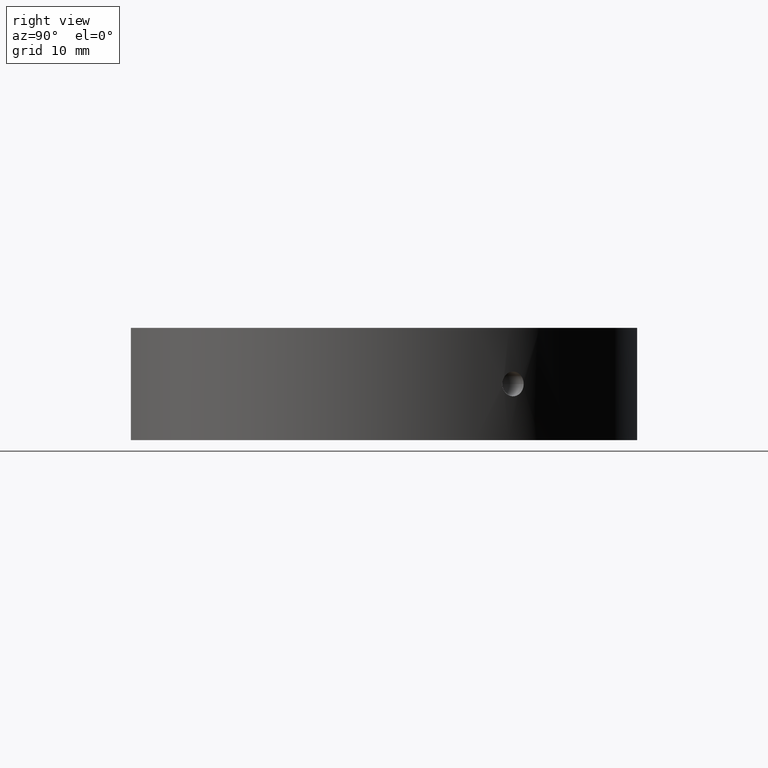
[diagram: clean part render]
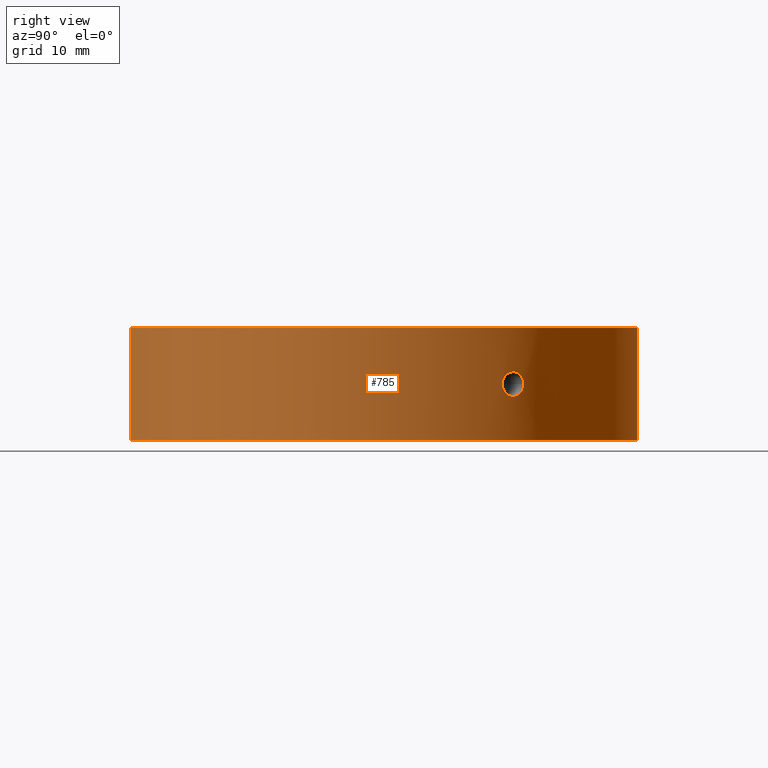
[diagram: same view with one face highlighted and labeled with its STEP entity id]
A machine part, right view. The second image highlights one B-rep face of the part: STEP entity #785.
In plain terms, the highlighted cylindrical surface (partial cylindrical patch) has radius 34.5 mm, axis along (-0, -0, -1).
Its self-contained STEP definition (entity closure, byte-faithful):
#14 = CARTESIAN_POINT ( 'NONE',  ( 29.50598473554563100, 17.87895065642284500, 1.483373040744774100 ) ) ;
#30 = DIRECTION ( 'NONE',  ( -1.224646799147350500E-016, -0.0000000000000000000, -1.000000000000000000 ) ) ;
#36 = EDGE_CURVE ( 'NONE', #560, #860, #584, .T. ) ;
#53 = CIRCLE ( 'NONE', #902, 34.50000000000000000 ) ;
#56 = ORIENTED_EDGE ( 'NONE', *, *, #445, .T. ) ;
#60 = DIRECTION ( 'NONE',  ( -1.000000000000000000, 0.0000000000000000000, 1.257045997084642900E-016 ) ) ;
#81 = CARTESIAN_POINT ( 'NONE',  ( 30.36831431609746800, 16.37142276500225400, -1.312190880152795300 ) ) ;
#85 = CARTESIAN_POINT ( 'NONE',  ( 29.35811851437454600, 18.12109495518915400, -1.319127750892613600 ) ) ;
#87 = DIRECTION ( 'NONE',  ( -1.224646799147350500E-016, -0.0000000000000000000, -1.000000000000000000 ) ) ;
#91 = CARTESIAN_POINT ( 'NONE',  ( 30.66868651825701500, 15.80131852868237800, -0.1076955633362641900 ) ) ;
#99 = CARTESIAN_POINT ( 'NONE',  ( 29.36294234467233700, 18.11285892864305300, 1.313253114964056700 ) ) ;
#102 = EDGE_CURVE ( 'NONE', #560, #630, #218, .T. ) ;
#105 = CARTESIAN_POINT ( 'NONE',  ( 30.66868651825701500, 15.80131852868237800, 2.020667265098580300E-016 ) ) ;
#116 = EDGE_CURVE ( 'NONE', #285, #933, #879, .T. ) ;
#160 = DIRECTION ( 'NONE',  ( -1.000000000000000000, 0.0000000000000000000, 1.257045997084642600E-016 ) ) ;
#168 = CARTESIAN_POINT ( 'NONE',  ( 30.66868651825701500, 15.80131852868237800, 2.020667265098580300E-016 ) ) ;
#181 = CARTESIAN_POINT ( 'NONE',  ( 30.08972613429658700, 16.87807987114845800, -1.597167256544365500 ) ) ;
#190 = CARTESIAN_POINT ( 'NONE',  ( 0.0000000000000000000, 0.0000000000000000000, -31.93906810035839800 ) ) ;
#191 = CARTESIAN_POINT ( 'NONE',  ( 30.28306777836129300, 16.52857696762910300, 1.431644453903150100 ) ) ;
#218 = LINE ( 'NONE', #368, #697 ) ;
#249 = CARTESIAN_POINT ( 'NONE',  ( 30.56787817599559900, 15.99557436564171400, -0.8277966330310849700 ) ) ;
#262 = CARTESIAN_POINT ( 'NONE',  ( 30.23663832848586400, 16.61341882957257700, -1.483340593935357900 ) ) ;
#263 = CARTESIAN_POINT ( 'NONE',  ( 29.10889459367058100, 18.51820657100804700, -0.7318007845230954900 ) ) ;
#266 = CARTESIAN_POINT ( 'NONE',  ( 30.57304402355881100, 15.98579825638822900, 0.8295326662063632300 ) ) ;
#274 = DIRECTION ( 'NONE',  ( -1.224646799147350500E-016, -0.0000000000000000000, -1.000000000000000000 ) ) ;
#276 = CARTESIAN_POINT ( 'NONE',  ( 30.64892767103138700, 15.83982321164909400, 0.4323886616049267800 ) ) ;
#285 = VERTEX_POINT ( 'NONE', #904 ) ;
#339 = CARTESIAN_POINT ( 'NONE',  ( 29.13612057503169000, 18.47539091076426500, -0.8265741951211869100 ) ) ;
#344 = CARTESIAN_POINT ( 'NONE',  ( 30.13990603287876300, 16.78827111240747900, -1.565998016103195700 ) ) ;
#347 = CARTESIAN_POINT ( 'NONE',  ( 29.20013058716425300, 18.37405685092135200, -1.005935388196641100 ) ) ;
#349 = CARTESIAN_POINT ( 'NONE',  ( 29.13124619434725600, 18.48316280377975900, 0.8315277717275944000 ) ) ;
#352 = CARTESIAN_POINT ( 'NONE',  ( 29.98561733921992500, 17.06235481285371600, -1.639305754636030300 ) ) ;
#368 = CARTESIAN_POINT ( 'NONE',  ( 6.914477565225098500, 33.79999999999998300, -31.93906810035839800 ) ) ;
#370 = ORIENTED_EDGE ( 'NONE', *, *, #825, .T. ) ;
#378 = LINE ( 'NONE', #1090, #766 ) ;
#424 = ORIENTED_EDGE ( 'NONE', *, *, #36, .F. ) ;
#429 = CARTESIAN_POINT ( 'NONE',  ( 30.66374211050582600, 15.81092551421641600, -0.2170725880918299700 ) ) ;
#443 = CARTESIAN_POINT ( 'NONE',  ( 30.48028785331765900, 16.16193039125597200, -1.089985301018405300 ) ) ;
#445 = EDGE_CURVE ( 'NONE', #630, #502, #53, .T. ) ;
#446 = CARTESIAN_POINT ( 'NONE',  ( 30.14099662717782000, 16.78631222360228000, 1.565230473453310700 ) ) ;
#455 = CARTESIAN_POINT ( 'NONE',  ( 30.23758799829837700, 16.61168949243173300, 1.482361230014557900 ) ) ;
#458 = CARTESIAN_POINT ( 'NONE',  ( 29.76973101586684900, 17.43733050078629500, 1.650179273840599100 ) ) ;
#492 = CARTESIAN_POINT ( 'NONE',  ( 6.914477565225041600, -33.79999999999999700, 7.500000000000006200 ) ) ;
#502 = VERTEX_POINT ( 'NONE', #492 ) ;
#504 = EDGE_LOOP ( 'NONE', ( #56, #370, #424, #832 ) ) ;
#508 = CARTESIAN_POINT ( 'NONE',  ( 4.829892851045829500E-015, 0.0000000000000000000, 7.500000000000007100 ) ) ;
#512 = CARTESIAN_POINT ( 'NONE',  ( 29.06430065050728500, 18.58811843003136100, -0.5319715229177688400 ) ) ;
#521 = CARTESIAN_POINT ( 'NONE',  ( 29.65949839927706600, 17.62394954343567500, -1.606604037809967300 ) ) ;
#531 = CARTESIAN_POINT ( 'NONE',  ( 29.66079961530853700, 17.62177667934558300, 1.607496616914587700 ) ) ;
#544 = CARTESIAN_POINT ( 'NONE',  ( 29.98607866610678100, 17.06154176926747500, 1.639157965665018600 ) ) ;
#558 = CARTESIAN_POINT ( 'NONE',  ( 29.01868651825701000, 18.65920236117099400, 0.0000000000000000000 ) ) ;
#560 = VERTEX_POINT ( 'NONE', #851 ) ;
#584 = CIRCLE ( 'NONE', #880, 34.50000000000000700 ) ;
#598 = CARTESIAN_POINT ( 'NONE',  ( 30.64436581989209400, 15.84844753697776600, -0.4285266159904841400 ) ) ;
#605 = AXIS2_PLACEMENT_3D ( 'NONE', #190, #274, #921 ) ;
#607 = CARTESIAN_POINT ( 'NONE',  ( 29.04715481335128800, 18.61486604098915600, -0.4271676194585082900 ) ) ;
#612 = EDGE_CURVE ( 'NONE', #933, #285, #676, .T. ) ;
#615 = CARTESIAN_POINT ( 'NONE',  ( 29.01868651825700200, 18.65920236117099800, -0.1090360706454927000 ) ) ;
#619 = CARTESIAN_POINT ( 'NONE',  ( 30.08982284198030000, 16.87790516185712900, 1.597088968555095100 ) ) ;
#622 = DIRECTION ( 'NONE',  ( 1.224646799147350500E-016, 0.0000000000000000000, 1.000000000000000000 ) ) ;
#630 = VERTEX_POINT ( 'NONE', #1046 ) ;
#676 = B_SPLINE_CURVE_WITH_KNOTS ( 'NONE', 3,
 ( #877, #615, #792, #607, #512, #263, #339, #347, #1126, #85, #872, #521, #692, #1123, #352, #181, #344, #262, #967, #81, #965, #443, #778, #249, #865, #952, #598, #429, #91, #168 ),
 .UNSPECIFIED., .F., .F.,
 ( 4, 2, 2, 2, 2, 2, 2, 2, 2, 2, 2, 2, 2, 2, 4 ),
 ( 0.0000000000000000000, 0.0003224618049647963900, 0.0006449236099295927700, 0.0009673854148943891000, 0.001289847219859185300, 0.001934770829788783400, 0.002579694439718381500, 0.002902156244683187300, 0.003224618049647993900, 0.003547079854612800100, 0.003869541659577605900, 0.004192003464542412100, 0.004514465269507218200, 0.004836927074472024400, 0.005159388879436830600 ),
 .UNSPECIFIED. ) ;
#680 = FACE_BOUND ( 'NONE', #1081, .T. ) ;
#692 = CARTESIAN_POINT ( 'NONE',  ( 29.76994331829033400, 17.43693828812443400, -1.649923199324238900 ) ) ;
#697 = VECTOR ( 'NONE', #622, 1000.000000000000000 ) ;
#711 = CARTESIAN_POINT ( 'NONE',  ( 29.01868651825702000, 18.65920236117099800, 0.2180224855462714100 ) ) ;
#718 = CARTESIAN_POINT ( 'NONE',  ( 30.66868651825700800, 15.80131852868238200, 0.2153420814036729700 ) ) ;
#721 = CARTESIAN_POINT ( 'NONE',  ( 29.01868651825701000, 18.65920236117099400, 0.0000000000000000000 ) ) ;
#760 = DIRECTION ( 'NONE',  ( -1.224646799147350500E-016, -0.0000000000000000000, -1.000000000000000000 ) ) ;
#766 = VECTOR ( 'NONE', #30, 1000.000000000000000 ) ;
#778 = CARTESIAN_POINT ( 'NONE',  ( 30.51224779403028400, 16.10143813530255100, -1.006505135180211200 ) ) ;
#785 = ADVANCED_FACE ( 'NONE', ( #680, #857 ), #819, .T. ) ;
#792 = CARTESIAN_POINT ( 'NONE',  ( 29.02448524578522200, 18.65019293980533600, -0.2162467584764852500 ) ) ;
#802 = CARTESIAN_POINT ( 'NONE',  ( 29.45670614101214800, 17.95996951633083700, 1.432745538090098400 ) ) ;
#806 = CARTESIAN_POINT ( 'NONE',  ( 29.19720684424031600, 18.37923717904023100, 1.015384241932876200 ) ) ;
#819 = CYLINDRICAL_SURFACE ( 'NONE', #605, 34.50000000000000000 ) ;
#825 = EDGE_CURVE ( 'NONE', #502, #860, #378, .T. ) ;
#832 = ORIENTED_EDGE ( 'NONE', *, *, #102, .T. ) ;
#851 = CARTESIAN_POINT ( 'NONE',  ( 6.914477565225100300, 33.79999999999998300, -7.499999999999992900 ) ) ;
#857 = FACE_OUTER_BOUND ( 'NONE', #504, .T. ) ;
#860 = VERTEX_POINT ( 'NONE', #1084 ) ;
#865 = CARTESIAN_POINT ( 'NONE',  ( 30.59178758169042900, 15.94974139801363900, -0.7313581134716332600 ) ) ;
#872 = CARTESIAN_POINT ( 'NONE',  ( 29.45463198608241100, 17.96424497079507200, -1.442049275761407400 ) ) ;
#877 = CARTESIAN_POINT ( 'NONE',  ( 29.01868651825701000, 18.65920236117099400, 0.0000000000000000000 ) ) ;
#879 = B_SPLINE_CURVE_WITH_KNOTS ( 'NONE', 3,
 ( #105, #718, #276, #266, #884, #1058, #972, #191, #455, #446, #619, #544, #1066, #458, #531, #14, #802, #99, #982, #806, #349, #1071, #711, #721 ),
 .UNSPECIFIED., .F., .F.,
 ( 4, 2, 2, 2, 2, 2, 2, 2, 2, 2, 2, 4 ),
 ( 0.005159388879436830600, 0.005804165638136632100, 0.006448942396836432700, 0.006771330776186333800, 0.007093719155536235000, 0.007416107534886135300, 0.007738495914236036500, 0.008383272672935834400, 0.008705661052285733000, 0.009028049431635631500, 0.009672826190335430400, 0.01031760294903522800 ),
 .UNSPECIFIED. ) ;
#880 = AXIS2_PLACEMENT_3D ( 'NONE', #1028, #87, #160 ) ;
#884 = CARTESIAN_POINT ( 'NONE',  ( 30.51608022640901300, 16.09478113836862400, 1.013687466116996100 ) ) ;
#902 = AXIS2_PLACEMENT_3D ( 'NONE', #508, #760, #60 ) ;
#904 = CARTESIAN_POINT ( 'NONE',  ( 30.66868651825701500, 15.80131852868237800, 2.020667265098580300E-016 ) ) ;
#921 = DIRECTION ( 'NONE',  ( -1.000000000000000000, 0.0000000000000000000, 2.011273595335428600E-016 ) ) ;
#933 = VERTEX_POINT ( 'NONE', #558 ) ;
#952 = CARTESIAN_POINT ( 'NONE',  ( 30.63002486718393400, 15.87618640424935300, -0.5313963152919377600 ) ) ;
#964 = ORIENTED_EDGE ( 'NONE', *, *, #612, .T. ) ;
#965 = CARTESIAN_POINT ( 'NONE',  ( 30.40776422391586200, 16.29796970471017700, -1.243991385772638100 ) ) ;
#967 = CARTESIAN_POINT ( 'NONE',  ( 30.28303148381018400, 16.52864186502587200, -1.431659257899945200 ) ) ;
#972 = CARTESIAN_POINT ( 'NONE',  ( 30.36863045881904800, 16.37083793516234900, 1.311711823978599200 ) ) ;
#982 = CARTESIAN_POINT ( 'NONE',  ( 29.31818664742731800, 18.18515172891904500, 1.243634087298446800 ) ) ;
#1028 = CARTESIAN_POINT ( 'NONE',  ( 2.992922652324802700E-015, 0.0000000000000000000, -7.500000000000000000 ) ) ;
#1046 = CARTESIAN_POINT ( 'NONE',  ( 6.914477565225042500, 33.79999999999999700, 7.500000000000000000 ) ) ;
#1058 = CARTESIAN_POINT ( 'NONE',  ( 30.40876212125924700, 16.29610288755638000, 1.242016604596869200 ) ) ;
#1066 = CARTESIAN_POINT ( 'NONE',  ( 29.93297151903547600, 17.15456385275621900, 1.649909518364626200 ) ) ;
#1070 = ORIENTED_EDGE ( 'NONE', *, *, #116, .T. ) ;
#1071 = CARTESIAN_POINT ( 'NONE',  ( 29.04247775318851100, 18.62233331304780400, 0.4346111301833526200 ) ) ;
#1081 = EDGE_LOOP ( 'NONE', ( #964, #1070 ) ) ;
#1084 = CARTESIAN_POINT ( 'NONE',  ( 6.914477565225086100, -33.79999999999999700, -7.500000000000000900 ) ) ;
#1090 = CARTESIAN_POINT ( 'NONE',  ( 6.914477565225098500, -33.79999999999998300, -31.93906810035839800 ) ) ;
#1123 = CARTESIAN_POINT ( 'NONE',  ( 29.93140209035735600, 17.15729449577852300, -1.650038243260002700 ) ) ;
#1126 = CARTESIAN_POINT ( 'NONE',  ( 29.23724384235040900, 18.31500406149843800, -1.090843108047712300 ) ) ;